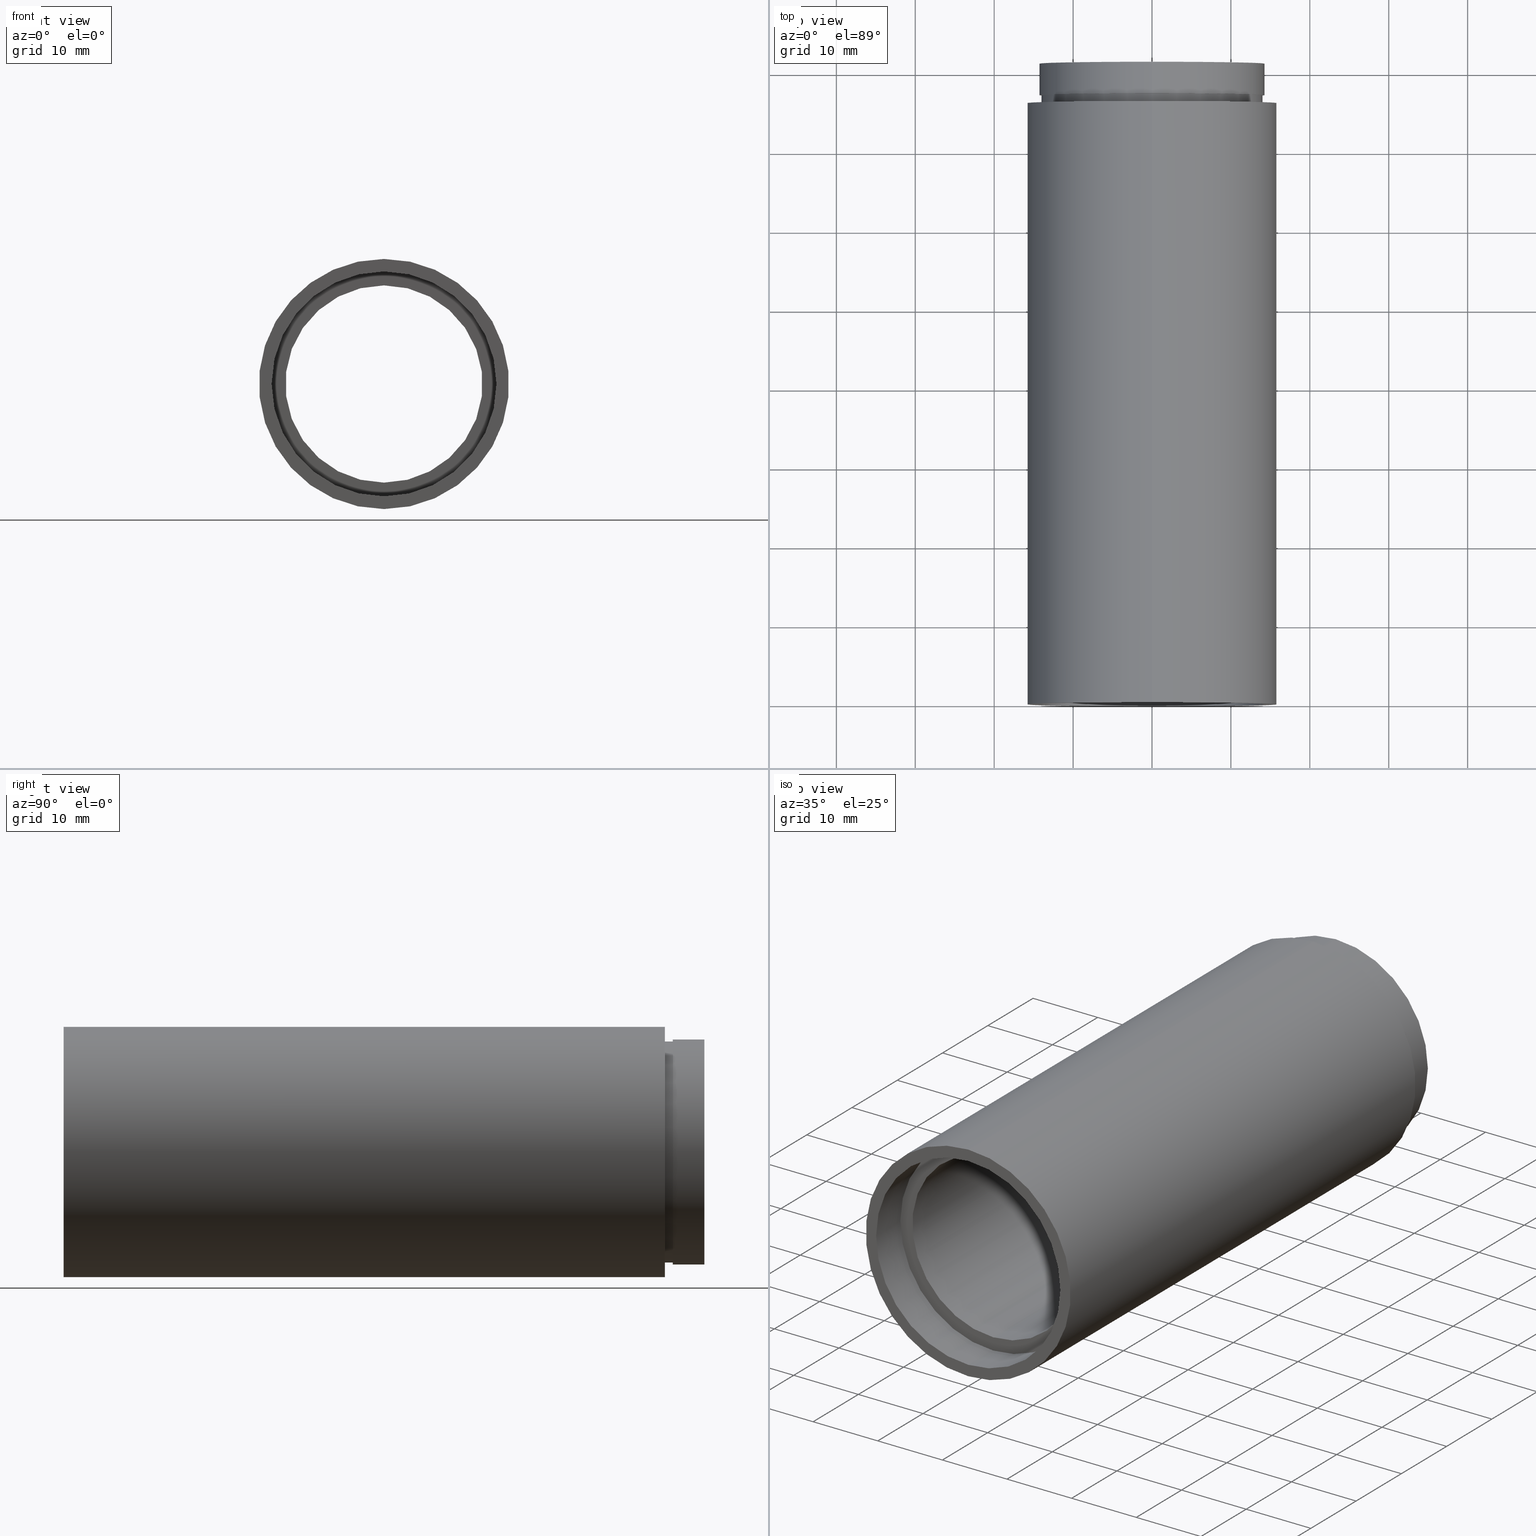
[diagram: canonical four-view strip — front | top / right | iso, engineering-drawing reading convention]
A machine part, canonical four-view strip (front | top / right | iso — engineering-drawing reading convention). The complete STEP part file that produces these views, byte-faithful:
ISO-10303-21;
HEADER;
FILE_DESCRIPTION (( 'STEP AP214' ),
    '1' );
FILE_NAME ('503044.STEP',
    '2019-09-06T05:43:21',
    ( '' ),
    ( '' ),
    'SwSTEP 2.0',
    'SolidWorks 2016',
    '' );
FILE_SCHEMA (( 'AUTOMOTIVE_DESIGN' ));
ENDSEC;

DATA;
#1 = CARTESIAN_POINT ( 'NONE',  ( 0.0000000000000000000, 81.19999999999998900, 0.0000000000000000000 ) ) ;
#2 = EDGE_CURVE ( 'NONE', #212, #215, #15, .T. ) ;
#3 = FACE_OUTER_BOUND ( 'NONE', #473, .T. ) ;
#4 = FACE_OUTER_BOUND ( 'NONE', #181, .T. ) ;
#5 = SURFACE_SIDE_STYLE ('',( #33 ) ) ;
#6 = EDGE_LOOP ( 'NONE', ( #89, #158, #195, #243 ) ) ;
#7 = CIRCLE ( 'NONE', #222, 14.35000000000001900 ) ;
#8 = ORIENTED_EDGE ( 'NONE', *, *, #459, .F. ) ;
#9 = EDGE_CURVE ( 'NONE', #372, #18, #146, .T. ) ;
#10 = DIRECTION ( 'NONE',  ( -0.0000000000000000000, 1.000000000000000000, -0.0000000000000000000 ) ) ;
#11 = AXIS2_PLACEMENT_3D ( 'NONE', #252, #448, #21 ) ;
#12 = UNCERTAINTY_MEASURE_WITH_UNIT (LENGTH_MEASURE( 1.000000000000000100E-005 ), #178, 'distance_accuracy_value', 'NONE');
#13 = ADVANCED_FACE ( 'NONE', ( #344 ), #294, .T. ) ;
#14 = VECTOR ( 'NONE', #189, 1000.000000000000000 ) ;
#15 = CIRCLE ( 'NONE', #475, 12.50000000000002000 ) ;
#16 = SURFACE_STYLE_USAGE ( .BOTH. , #255 ) ;
#17 =( GEOMETRIC_REPRESENTATION_CONTEXT ( 3 ) GLOBAL_UNCERTAINTY_ASSIGNED_CONTEXT ( ( #58 ) ) GLOBAL_UNIT_ASSIGNED_CONTEXT ( ( #143, #284, #101 ) ) REPRESENTATION_CONTEXT ( 'NONE', 'WORKASPACE' ) );
#18 = VERTEX_POINT ( 'NONE', #179 ) ;
#19 = CARTESIAN_POINT ( 'NONE',  ( 0.0000000000000000000, 4.500000000000032000, 0.0000000000000000000 ) ) ;
#20 = LINE ( 'NONE', #544, #371 ) ;
#21 = DIRECTION ( 'NONE',  ( 0.0000000000000000000, 0.0000000000000000000, 1.000000000000000000 ) ) ;
#22 = DIRECTION ( 'NONE',  ( 0.0000000000000000000, 0.0000000000000000000, 1.000000000000000000 ) ) ;
#23 = VECTOR ( 'NONE', #49, 1000.000000000000000 ) ;
#24 = PRESENTATION_STYLE_ASSIGNMENT (( #91 ) ) ;
#25 = DIRECTION ( 'NONE',  ( -0.0000000000000000000, 1.000000000000000000, -0.0000000000000000000 ) ) ;
#26 = CARTESIAN_POINT ( 'NONE',  ( 14.00000000000000900, 76.19999999999998900, 0.0000000000000000000 ) ) ;
#27 = PRESENTATION_LAYER_ASSIGNMENT (  '', '', ( #620 ) ) ;
#28 = ORIENTED_EDGE ( 'NONE', *, *, #422, .F. ) ;
#29 = DIRECTION ( 'NONE',  ( 0.0000000000000000000, 0.0000000000000000000, 1.000000000000000000 ) ) ;
#30 =( GEOMETRIC_REPRESENTATION_CONTEXT ( 3 ) GLOBAL_UNCERTAINTY_ASSIGNED_CONTEXT ( ( #571 ) ) GLOBAL_UNIT_ASSIGNED_CONTEXT ( ( #130, #450, #360 ) ) REPRESENTATION_CONTEXT ( 'NONE', 'WORKASPACE' ) );
#31 = DIRECTION ( 'NONE',  ( -0.0000000000000000000, 1.000000000000000000, -0.0000000000000000000 ) ) ;
#32 = ADVANCED_FACE ( 'NONE', ( #283 ), #452, .T. ) ;
#33 = SURFACE_STYLE_FILL_AREA ( #147 ) ;
#34 = ORIENTED_EDGE ( 'NONE', *, *, #379, .T. ) ;
#35 = FILL_AREA_STYLE_COLOUR ( '', #282 ) ;
#36 = ORIENTED_EDGE ( 'NONE', *, *, #588, .F. ) ;
#37 = EDGE_LOOP ( 'NONE', ( #538, #51 ) ) ;
#38 = CARTESIAN_POINT ( 'NONE',  ( 0.0000000000000000000, 81.19999999999998900, 12.50000000000002000 ) ) ;
#39 = SURFACE_SIDE_STYLE ('',( #565 ) ) ;
#40 = DIRECTION ( 'NONE',  ( 0.0000000000000000000, 0.0000000000000000000, 1.000000000000000000 ) ) ;
#41 = DIRECTION ( 'NONE',  ( 0.0000000000000000000, 0.0000000000000000000, 1.000000000000000000 ) ) ;
#42 = AXIS2_PLACEMENT_3D ( 'NONE', #85, #183, #272 ) ;
#43 = DIRECTION ( 'NONE',  ( -0.0000000000000000000, 1.000000000000000000, -0.0000000000000000000 ) ) ;
#44 =( NAMED_UNIT ( * ) SI_UNIT ( $, .STERADIAN. ) SOLID_ANGLE_UNIT ( ) );
#45 = SURFACE_SIDE_STYLE ('',( #106 ) ) ;
#46 = DIRECTION ( 'NONE',  ( -0.0000000000000000000, 1.000000000000000000, -0.0000000000000000000 ) ) ;
#47 = ORIENTED_EDGE ( 'NONE', *, *, #386, .T. ) ;
#48 = AXIS2_PLACEMENT_3D ( 'NONE', #132, #87, #40 ) ;
#49 = DIRECTION ( 'NONE',  ( -0.0000000000000000000, 1.000000000000000000, -0.0000000000000000000 ) ) ;
#50 = ORIENTED_EDGE ( 'NONE', *, *, #572, .F. ) ;
#51 = ORIENTED_EDGE ( 'NONE', *, *, #361, .T. ) ;
#52 = MECHANICAL_DESIGN_GEOMETRIC_PRESENTATION_REPRESENTATION (  '', ( #247 ), #17 ) ;
#53 = CYLINDRICAL_SURFACE ( 'NONE', #275, 12.50000000000002000 ) ;
#54 = AXIS2_PLACEMENT_3D ( 'NONE', #555, #43, #618 ) ;
#55 = EDGE_LOOP ( 'NONE', ( #28, #229 ) ) ;
#56 = AXIS2_PLACEMENT_3D ( 'NONE', #180, #417, #227 ) ;
#57 = DIRECTION ( 'NONE',  ( 0.0000000000000000000, 0.0000000000000000000, 1.000000000000000000 ) ) ;
#58 = UNCERTAINTY_MEASURE_WITH_UNIT (LENGTH_MEASURE( 1.000000000000000100E-005 ), #143, 'distance_accuracy_value', 'NONE');
#59 = ORIENTED_EDGE ( 'NONE', *, *, #9, .F. ) ;
#60 = AXIS2_PLACEMENT_3D ( 'NONE', #121, #216, #259 ) ;
#61 = PRODUCT_DEFINITION ( 'δ֪', '', #624, #385 ) ;
#62 = PRESENTATION_STYLE_ASSIGNMENT (( #16 ) ) ;
#63 = VERTEX_POINT ( 'NONE', #514 ) ;
#64 = ADVANCED_FACE ( 'NONE', ( #4 ), #339, .T. ) ;
#65 = FACE_BOUND ( 'NONE', #86, .T. ) ;
#66 = DIRECTION ( 'NONE',  ( -0.0000000000000000000, 1.000000000000000000, -0.0000000000000000000 ) ) ;
#67 = EDGE_LOOP ( 'NONE', ( #328, #537, #59, #225 ) ) ;
#68 = CARTESIAN_POINT ( 'NONE',  ( 0.0000000000000000000, 2.775557561562891400E-014, 14.25000000000000000 ) ) ;
#69 = CARTESIAN_POINT ( 'NONE',  ( 1.745121688784978200E-015, 4.500000000000032000, -14.25000000000000000 ) ) ;
#70 = DIRECTION ( 'NONE',  ( -0.0000000000000000000, 1.000000000000000000, -0.0000000000000000000 ) ) ;
#71 = CARTESIAN_POINT ( 'NONE',  ( 0.0000000000000000000, 161.3761669434274500, 0.0000000000000000000 ) ) ;
#72 = ORIENTED_EDGE ( 'NONE', *, *, #550, .F. ) ;
#73 = CARTESIAN_POINT ( 'NONE',  ( 0.0000000000000000000, 77.19999999999998900, 14.00000000000000900 ) ) ;
#74 = PRESENTATION_STYLE_ASSIGNMENT (( #98 ) ) ;
#75 = ORIENTED_EDGE ( 'NONE', *, *, #388, .F. ) ;
#76 = ADVANCED_FACE ( 'NONE', ( #317 ), #592, .T. ) ;
#77 = AXIS2_PLACEMENT_3D ( 'NONE', #19, #201, #594 ) ;
#78 = ORIENTED_EDGE ( 'NONE', *, *, #531, .T. ) ;
#79 = DIRECTION ( 'NONE',  ( -0.0000000000000000000, 1.000000000000000000, -0.0000000000000000000 ) ) ;
#80 = FACE_OUTER_BOUND ( 'NONE', #583, .T. ) ;
#81 = AXIS2_PLACEMENT_3D ( 'NONE', #115, #262, #397 ) ;
#82 = DIRECTION ( 'NONE',  ( -0.0000000000000000000, 1.000000000000000000, -0.0000000000000000000 ) ) ;
#83 = DIRECTION ( 'NONE',  ( 0.0000000000000000000, 0.0000000000000000000, 1.000000000000000000 ) ) ;
#84 = CYLINDRICAL_SURFACE ( 'NONE', #48, 14.25000000000000900 ) ;
#85 = CARTESIAN_POINT ( 'NONE',  ( 12.50000000000002000, 81.19999999999998900, 0.0000000000000000000 ) ) ;
#86 = EDGE_LOOP ( 'NONE', ( #476, #597 ) ) ;
#87 = DIRECTION ( 'NONE',  ( -0.0000000000000000000, 1.000000000000000000, -0.0000000000000000000 ) ) ;
#88 = CIRCLE ( 'NONE', #54, 15.85000000000002100 ) ;
#89 = ORIENTED_EDGE ( 'NONE', *, *, #427, .F. ) ;
#90 = DIRECTION ( 'NONE',  ( -0.0000000000000000000, 1.000000000000000000, -0.0000000000000000000 ) ) ;
#91 = SURFACE_STYLE_USAGE ( .BOTH. , #561 ) ;
#92 = MECHANICAL_DESIGN_GEOMETRIC_PRESENTATION_REPRESENTATION (  '', ( #620 ), #404 ) ;
#93 = DIRECTION ( 'NONE',  ( -0.0000000000000000000, 1.000000000000000000, -0.0000000000000000000 ) ) ;
#94 = EDGE_LOOP ( 'NONE', ( #357, #333, #109, #412 ) ) ;
#95 = DIRECTION ( 'NONE',  ( -0.0000000000000000000, 1.000000000000000000, -0.0000000000000000000 ) ) ;
#96 = DIRECTION ( 'NONE',  ( 0.0000000000000000000, -0.0000000000000000000, -1.000000000000000000 ) ) ;
#97 = ORIENTED_EDGE ( 'NONE', *, *, #263, .T. ) ;
#98 = SURFACE_STYLE_USAGE ( .BOTH. , #378 ) ;
#99 = AXIS2_PLACEMENT_3D ( 'NONE', #114, #442, #489 ) ;
#100 =( GEOMETRIC_REPRESENTATION_CONTEXT ( 3 ) GLOBAL_UNCERTAINTY_ASSIGNED_CONTEXT ( ( #525 ) ) GLOBAL_UNIT_ASSIGNED_CONTEXT ( ( #513, #134, #413 ) ) REPRESENTATION_CONTEXT ( 'NONE', 'WORKASPACE' ) );
#101 =( NAMED_UNIT ( * ) SI_UNIT ( $, .STERADIAN. ) SOLID_ANGLE_UNIT ( ) );
#102 = LINE ( 'NONE', #313, #257 ) ;
#103 = FACE_BOUND ( 'NONE', #233, .T. ) ;
#104 = SURFACE_STYLE_FILL_AREA ( #619 ) ;
#105 = ORIENTED_EDGE ( 'NONE', *, *, #469, .F. ) ;
#106 = SURFACE_STYLE_FILL_AREA ( #188 ) ;
#107 = ORIENTED_EDGE ( 'NONE', *, *, #268, .T. ) ;
#108 = PRESENTATION_LAYER_ASSIGNMENT (  '', '', ( #308 ) ) ;
#109 = ORIENTED_EDGE ( 'NONE', *, *, #379, .F. ) ;
#110 = AXIS2_PLACEMENT_3D ( 'NONE', #493, #25, #395 ) ;
#111 = FACE_OUTER_BOUND ( 'NONE', #119, .T. ) ;
#112 = AXIS2_PLACEMENT_3D ( 'NONE', #410, #128, #365 ) ;
#113 = APPLICATION_PROTOCOL_DEFINITION ( 'draft international standard', 'automotive_design', 1998, #199 ) ;
#114 = CARTESIAN_POINT ( 'NONE',  ( 0.0000000000000000000, 2.775557561562891400E-014, 0.0000000000000000000 ) ) ;
#115 = CARTESIAN_POINT ( 'NONE',  ( 14.00000000000000900, 77.19999999999998900, 0.0000000000000000000 ) ) ;
#116 = ORIENTED_EDGE ( 'NONE', *, *, #185, .F. ) ;
#117 = COLOUR_RGB ( '',1.000000000000000000, 1.000000000000000000, 1.000000000000000000 ) ;
#118 = CARTESIAN_POINT ( 'NONE',  ( 1.530808498934193900E-015, 81.19999999999998900, -12.50000000000002000 ) ) ;
#119 = EDGE_LOOP ( 'NONE', ( #613, #615, #187, #411 ) ) ;
#120 = CIRCLE ( 'NONE', #623, 14.00000000000000900 ) ;
#121 = CARTESIAN_POINT ( 'NONE',  ( 0.0000000000000000000, 76.19999999999998900, 0.0000000000000000000 ) ) ;
#122 = AXIS2_PLACEMENT_3D ( 'NONE', #230, #320, #271 ) ;
#123 = DIRECTION ( 'NONE',  ( -0.0000000000000000000, 1.000000000000000000, -0.0000000000000000000 ) ) ;
#124 = VERTEX_POINT ( 'NONE', #38 ) ;
#125 = STYLED_ITEM ( 'NONE', ( #567 ), #265 ) ;
#126 = UNCERTAINTY_MEASURE_WITH_UNIT (LENGTH_MEASURE( 1.000000000000000100E-005 ), #616, 'distance_accuracy_value', 'NONE');
#127 = AXIS2_PLACEMENT_3D ( 'NONE', #269, #421, #373 ) ;
#128 = DIRECTION ( 'NONE',  ( -0.0000000000000000000, 1.000000000000000000, -0.0000000000000000000 ) ) ;
#129 = ORIENTED_EDGE ( 'NONE', *, *, #261, .T. ) ;
#130 =( LENGTH_UNIT ( ) NAMED_UNIT ( * ) SI_UNIT ( .MILLI., .METRE. ) );
#131 = CARTESIAN_POINT ( 'NONE',  ( 0.0000000000000000000, 76.19999999999998900, 0.0000000000000000000 ) ) ;
#132 = CARTESIAN_POINT ( 'NONE',  ( 0.0000000000000000000, 161.3761669434274500, 0.0000000000000000000 ) ) ;
#133 = ORIENTED_EDGE ( 'NONE', *, *, #422, .T. ) ;
#134 =( NAMED_UNIT ( * ) PLANE_ANGLE_UNIT ( ) SI_UNIT ( $, .RADIAN. ) );
#135 = FILL_AREA_STYLE ('',( #557 ) ) ;
#136 = CIRCLE ( 'NONE', #609, 15.85000000000002100 ) ;
#137 = FACE_OUTER_BOUND ( 'NONE', #67, .T. ) ;
#138 = SURFACE_SIDE_STYLE ('',( #535 ) ) ;
#139 =( NAMED_UNIT ( * ) SI_UNIT ( $, .STERADIAN. ) SOLID_ANGLE_UNIT ( ) );
#140 = AXIS2_PLACEMENT_3D ( 'NONE', #251, #157, #306 ) ;
#141 = CARTESIAN_POINT ( 'NONE',  ( 0.0000000000000000000, 161.3761669434274500, 14.25000000000000900 ) ) ;
#142 =( LENGTH_UNIT ( ) NAMED_UNIT ( * ) SI_UNIT ( .MILLI., .METRE. ) );
#143 =( LENGTH_UNIT ( ) NAMED_UNIT ( * ) SI_UNIT ( .MILLI., .METRE. ) );
#144 = EDGE_CURVE ( 'NONE', #124, #392, #495, .T. ) ;
#145 = CIRCLE ( 'NONE', #453, 14.35000000000001900 ) ;
#146 = CIRCLE ( 'NONE', #213, 14.25000000000001100 ) ;
#147 = FILL_AREA_STYLE ('',( #287 ) ) ;
#148 = AXIS2_PLACEMENT_3D ( 'NONE', #446, #311, #29 ) ;
#149 = EDGE_LOOP ( 'NONE', ( #105, #470 ) ) ;
#150 = LINE ( 'NONE', #309, #591 ) ;
#151 = EDGE_CURVE ( 'NONE', #456, #548, #193, .T. ) ;
#152 = PRODUCT_CONTEXT ( 'NONE', #199, 'mechanical' ) ;
#153 = MECHANICAL_DESIGN_GEOMETRIC_PRESENTATION_REPRESENTATION (  '', ( #314 ), #30 ) ;
#154 = PRESENTATION_STYLE_ASSIGNMENT (( #375 ) ) ;
#155 = AXIS2_PLACEMENT_3D ( 'NONE', #131, #415, #467 ) ;
#156 = ADVANCED_FACE ( 'NONE', ( #137 ), #84, .T. ) ;
#157 = DIRECTION ( 'NONE',  ( 0.0000000000000000000, 0.0000000000000000000, 1.000000000000000000 ) ) ;
#158 = ORIENTED_EDGE ( 'NONE', *, *, #169, .F. ) ;
#159 = ORIENTED_EDGE ( 'NONE', *, *, #485, .F. ) ;
#160 = PRODUCT_RELATED_PRODUCT_CATEGORY ( 'part', '', ( #457 ) ) ;
#161 = FACE_OUTER_BOUND ( 'NONE', #406, .T. ) ;
#162 = CARTESIAN_POINT ( 'NONE',  ( 1.714505518806295400E-015, 76.19999999999998900, -14.00000000000000900 ) ) ;
#163 = COLOUR_RGB ( '',1.000000000000000000, 1.000000000000000000, 1.000000000000000000 ) ;
#164 = APPLICATION_CONTEXT ( 'automotive_design' ) ;
#165 = CARTESIAN_POINT ( 'NONE',  ( 1.530808498934193900E-015, 5.499999999999976900, -12.50000000000002000 ) ) ;
#166 = DIRECTION ( 'NONE',  ( 0.0000000000000000000, -0.0000000000000000000, -1.000000000000000000 ) ) ;
#167 = SHAPE_DEFINITION_REPRESENTATION ( #543, #348 ) ;
#168 = LINE ( 'NONE', #304, #600 ) ;
#169 = EDGE_CURVE ( 'NONE', #215, #212, #530, .T. ) ;
#170 = COLOUR_RGB ( '',1.000000000000000000, 1.000000000000000000, 1.000000000000000000 ) ;
#171 = CARTESIAN_POINT ( 'NONE',  ( 0.0000000000000000000, 77.19999999999998900, 0.0000000000000000000 ) ) ;
#172 = ADVANCED_FACE ( 'NONE', ( #540 ), #273, .F. ) ;
#173 = VERTEX_POINT ( 'NONE', #358 ) ;
#174 = ORIENTED_EDGE ( 'NONE', *, *, #496, .F. ) ;
#175 = DIRECTION ( 'NONE',  ( 0.0000000000000000000, 0.0000000000000000000, 1.000000000000000000 ) ) ;
#176 = PRESENTATION_LAYER_ASSIGNMENT (  '', '', ( #314 ) ) ;
#177 = DIRECTION ( 'NONE',  ( -0.0000000000000000000, 1.000000000000000000, -0.0000000000000000000 ) ) ;
#178 =( LENGTH_UNIT ( ) NAMED_UNIT ( * ) SI_UNIT ( .MILLI., .METRE. ) );
#179 = CARTESIAN_POINT ( 'NONE',  ( 1.745121688784979800E-015, 81.19999999999998900, -14.25000000000001200 ) ) ;
#180 = CARTESIAN_POINT ( 'NONE',  ( 0.0000000000000000000, 81.19999999999998900, 0.0000000000000000000 ) ) ;
#181 = EDGE_LOOP ( 'NONE', ( #72, #482, #241, #50 ) ) ;
#182 =( NAMED_UNIT ( * ) PLANE_ANGLE_UNIT ( ) SI_UNIT ( $, .RADIAN. ) );
#183 = DIRECTION ( 'NONE',  ( 0.0000000000000000000, -1.000000000000000000, 0.0000000000000000000 ) ) ;
#184 = FACE_OUTER_BOUND ( 'NONE', #499, .T. ) ;
#185 = EDGE_CURVE ( 'NONE', #548, #456, #266, .T. ) ;
#186 = FILL_AREA_STYLE ('',( #478 ) ) ;
#187 = ORIENTED_EDGE ( 'NONE', *, *, #524, .T. ) ;
#188 = FILL_AREA_STYLE ('',( #330 ) ) ;
#189 = DIRECTION ( 'NONE',  ( -0.0000000000000000000, 1.000000000000000000, -0.0000000000000000000 ) ) ;
#190 = PRESENTATION_LAYER_ASSIGNMENT (  '', '', ( #497 ) ) ;
#191 = DIRECTION ( 'NONE',  ( 0.0000000000000000000, 0.0000000000000000000, 1.000000000000000000 ) ) ;
#192 = ORIENTED_EDGE ( 'NONE', *, *, #534, .T. ) ;
#193 = CIRCLE ( 'NONE', #336, 14.25000000000000000 ) ;
#194 = ORIENTED_EDGE ( 'NONE', *, *, #588, .T. ) ;
#195 = ORIENTED_EDGE ( 'NONE', *, *, #398, .T. ) ;
#196 = EDGE_CURVE ( 'NONE', #449, #63, #529, .T. ) ;
#197 = MECHANICAL_DESIGN_GEOMETRIC_PRESENTATION_REPRESENTATION (  '', ( #245 ), #605 ) ;
#198 = ORIENTED_EDGE ( 'NONE', *, *, #332, .F. ) ;
#199 = APPLICATION_CONTEXT ( 'automotive_design' ) ;
#200 = FACE_BOUND ( 'NONE', #526, .T. ) ;
#201 = DIRECTION ( 'NONE',  ( -0.0000000000000000000, 1.000000000000000000, -0.0000000000000000000 ) ) ;
#202 = CIRCLE ( 'NONE', #536, 14.25000000000000700 ) ;
#203 = CARTESIAN_POINT ( 'NONE',  ( 0.0000000000000000000, -2.775557561562891400E-014, 0.0000000000000000000 ) ) ;
#204 = ORIENTED_EDGE ( 'NONE', *, *, #524, .F. ) ;
#205 = CARTESIAN_POINT ( 'NONE',  ( 0.0000000000000000000, 5.499999999999976900, 12.50000000000002000 ) ) ;
#206 = AXIS2_PLACEMENT_3D ( 'NONE', #562, #177, #226 ) ;
#207 = CARTESIAN_POINT ( 'NONE',  ( 0.0000000000000000000, 161.3761669434274500, 14.00000000000000900 ) ) ;
#208 = COLOUR_RGB ( '',1.000000000000000000, 1.000000000000000000, 1.000000000000000000 ) ;
#209 = VERTEX_POINT ( 'NONE', #68 ) ;
#210 = CARTESIAN_POINT ( 'NONE',  ( 14.25000000000000000, 8.726008142763375300E-015, 0.0000000000000000000 ) ) ;
#211 = DIRECTION ( 'NONE',  ( 0.0000000000000000000, 0.0000000000000000000, 1.000000000000000000 ) ) ;
#212 = VERTEX_POINT ( 'NONE', #165 ) ;
#213 = AXIS2_PLACEMENT_3D ( 'NONE', #506, #219, #368 ) ;
#214 = PLANE ( 'NONE',  #81 ) ;
#215 = VERTEX_POINT ( 'NONE', #205 ) ;
#216 = DIRECTION ( 'NONE',  ( -0.0000000000000000000, 1.000000000000000000, -0.0000000000000000000 ) ) ;
#217 = ADVANCED_FACE ( 'NONE', ( #547, #103 ), #542, .F. ) ;
#218 = CARTESIAN_POINT ( 'NONE',  ( 0.0000000000000000000, 161.3761669434274500, 0.0000000000000000000 ) ) ;
#219 = DIRECTION ( 'NONE',  ( -0.0000000000000000000, 1.000000000000000000, -0.0000000000000000000 ) ) ;
#220 = DIRECTION ( 'NONE',  ( 0.0000000000000000000, 0.0000000000000000000, 1.000000000000000000 ) ) ;
#221 = SURFACE_STYLE_FILL_AREA ( #186 ) ;
#222 = AXIS2_PLACEMENT_3D ( 'NONE', #223, #90, #560 ) ;
#223 = CARTESIAN_POINT ( 'NONE',  ( 0.0000000000000000000, 4.499999999999976000, 0.0000000000000000000 ) ) ;
#224 =( NAMED_UNIT ( * ) PLANE_ANGLE_UNIT ( ) SI_UNIT ( $, .RADIAN. ) );
#225 = ORIENTED_EDGE ( 'NONE', *, *, #293, .F. ) ;
#226 = DIRECTION ( 'NONE',  ( 0.0000000000000000000, 0.0000000000000000000, 1.000000000000000000 ) ) ;
#227 = DIRECTION ( 'NONE',  ( 0.0000000000000000000, 0.0000000000000000000, 1.000000000000000000 ) ) ;
#228 = PRESENTATION_STYLE_ASSIGNMENT (( #277 ) ) ;
#229 = ORIENTED_EDGE ( 'NONE', *, *, #263, .F. ) ;
#230 = CARTESIAN_POINT ( 'NONE',  ( 0.0000000000000000000, 161.3761669434274500, 0.0000000000000000000 ) ) ;
#231 = DIRECTION ( 'NONE',  ( -0.0000000000000000000, 1.000000000000000000, -0.0000000000000000000 ) ) ;
#232 = DIRECTION ( 'NONE',  ( -0.0000000000000000000, 1.000000000000000000, -0.0000000000000000000 ) ) ;
#233 = EDGE_LOOP ( 'NONE', ( #377, #192 ) ) ;
#234 = EDGE_CURVE ( 'NONE', #209, #447, #610, .T. ) ;
#235 = UNCERTAINTY_MEASURE_WITH_UNIT (LENGTH_MEASURE( 1.000000000000000100E-005 ), #492, 'distance_accuracy_value', 'NONE');
#236 = CARTESIAN_POINT ( 'NONE',  ( 0.0000000000000000000, 76.19999999999998900, 0.0000000000000000000 ) ) ;
#237 = CARTESIAN_POINT ( 'NONE',  ( 0.0000000000000000000, 5.499999999999976900, 0.0000000000000000000 ) ) ;
#238 = AXIS2_PLACEMENT_3D ( 'NONE', #590, #10, #57 ) ;
#239 = CARTESIAN_POINT ( 'NONE',  ( 1.941065176648557100E-015, -2.775557561562891400E-014, -15.85000000000002100 ) ) ;
#240 = CIRCLE ( 'NONE', #112, 14.25000000000000700 ) ;
#241 = ORIENTED_EDGE ( 'NONE', *, *, #293, .T. ) ;
#242 = CIRCLE ( 'NONE', #148, 14.35000000000001900 ) ;
#243 = ORIENTED_EDGE ( 'NONE', *, *, #144, .T. ) ;
#244 = AXIS2_PLACEMENT_3D ( 'NONE', #26, #359, #166 ) ;
#245 = STYLED_ITEM ( 'NONE', ( #154 ), #64 ) ;
#246 = ORIENTED_EDGE ( 'NONE', *, *, #361, .F. ) ;
#247 = STYLED_ITEM ( 'NONE', ( #74 ), #295 ) ;
#248 = COLOUR_RGB ( '',1.000000000000000000, 1.000000000000000000, 1.000000000000000000 ) ;
#249 = VERTEX_POINT ( 'NONE', #162 ) ;
#250 = ADVANCED_FACE ( 'NONE', ( #431, #65 ), #256, .F. ) ;
#251 = CARTESIAN_POINT ( 'NONE',  ( 0.0000000000000000000, 0.0000000000000000000, 0.0000000000000000000 ) ) ;
#252 = CARTESIAN_POINT ( 'NONE',  ( 0.0000000000000000000, 77.19999999999998900, 0.0000000000000000000 ) ) ;
#253 = MECHANICAL_DESIGN_GEOMETRIC_PRESENTATION_REPRESENTATION (  '', ( #400 ), #100 ) ;
#254 = ORIENTED_EDGE ( 'NONE', *, *, #296, .F. ) ;
#255 = SURFACE_SIDE_STYLE ('',( #347 ) ) ;
#256 = PLANE ( 'NONE',  #438 ) ;
#257 = VECTOR ( 'NONE', #31, 1000.000000000000000 ) ;
#258 = LINE ( 'NONE', #207, #425 ) ;
#259 = DIRECTION ( 'NONE',  ( 0.0000000000000000000, 0.0000000000000000000, 1.000000000000000000 ) ) ;
#260 = DIRECTION ( 'NONE',  ( -0.0000000000000000000, 1.000000000000000000, -0.0000000000000000000 ) ) ;
#261 = EDGE_CURVE ( 'NONE', #249, #63, #558, .T. ) ;
#262 = DIRECTION ( 'NONE',  ( -0.0000000000000000000, 1.000000000000000000, 0.0000000000000000000 ) ) ;
#263 = EDGE_CURVE ( 'NONE', #323, #480, #145, .T. ) ;
#264 = CARTESIAN_POINT ( 'NONE',  ( 0.0000000000000000000, 77.19999999999998900, 0.0000000000000000000 ) ) ;
#265 = ADVANCED_FACE ( 'NONE', ( #111 ), #338, .F. ) ;
#266 = CIRCLE ( 'NONE', #77, 14.25000000000000000 ) ;
#267 = ORIENTED_EDGE ( 'NONE', *, *, #432, .T. ) ;
#268 = EDGE_CURVE ( 'NONE', #173, #305, #579, .T. ) ;
#269 = CARTESIAN_POINT ( 'NONE',  ( 0.0000000000000000000, 81.19999999999998900, 0.0000000000000000000 ) ) ;
#270 = ORIENTED_EDGE ( 'NONE', *, *, #310, .T. ) ;
#271 = DIRECTION ( 'NONE',  ( 0.0000000000000000000, 0.0000000000000000000, 1.000000000000000000 ) ) ;
#272 = DIRECTION ( 'NONE',  ( 0.0000000000000000000, -0.0000000000000000000, -1.000000000000000000 ) ) ;
#273 = CYLINDRICAL_SURFACE ( 'NONE', #110, 14.35000000000001900 ) ;
#274 =( NAMED_UNIT ( * ) PLANE_ANGLE_UNIT ( ) SI_UNIT ( $, .RADIAN. ) );
#275 = AXIS2_PLACEMENT_3D ( 'NONE', #376, #93, #518 ) ;
#276 = UNCERTAINTY_MEASURE_WITH_UNIT (LENGTH_MEASURE( 1.000000000000000100E-005 ), #352, 'distance_accuracy_value', 'NONE');
#277 = SURFACE_STYLE_USAGE ( .BOTH. , #39 ) ;
#278 = PRESENTATION_LAYER_ASSIGNMENT (  '', '', ( #245 ) ) ;
#279 = CIRCLE ( 'NONE', #291, 15.85000000000002100 ) ;
#280 = DIRECTION ( 'NONE',  ( 0.0000000000000000000, -1.000000000000000000, 0.0000000000000000000 ) ) ;
#281 =( LENGTH_UNIT ( ) NAMED_UNIT ( * ) SI_UNIT ( .MILLI., .METRE. ) );
#282 = COLOUR_RGB ( '',1.000000000000000000, 1.000000000000000000, 1.000000000000000000 ) ;
#283 = FACE_OUTER_BOUND ( 'NONE', #437, .T. ) ;
#284 =( NAMED_UNIT ( * ) PLANE_ANGLE_UNIT ( ) SI_UNIT ( $, .RADIAN. ) );
#285 = AXIS2_PLACEMENT_3D ( 'NONE', #218, #508, #355 ) ;
#286 = AXIS2_PLACEMENT_3D ( 'NONE', #521, #232, #494 ) ;
#287 = FILL_AREA_STYLE_COLOUR ( '', #248 ) ;
#288 = ORIENTED_EDGE ( 'NONE', *, *, #144, .F. ) ;
#289 = ORIENTED_EDGE ( 'NONE', *, *, #310, .F. ) ;
#290 = PRESENTATION_STYLE_ASSIGNMENT (( #380 ) ) ;
#291 = AXIS2_PLACEMENT_3D ( 'NONE', #236, #477, #573 ) ;
#292 = CYLINDRICAL_SURFACE ( 'NONE', #285, 14.25000000000000000 ) ;
#293 = EDGE_CURVE ( 'NONE', #569, #372, #351, .T. ) ;
#294 = CYLINDRICAL_SURFACE ( 'NONE', #501, 15.85000000000002100 ) ;
#295 = MANIFOLD_SOLID_BREP ( '��ת1', #602 ) ;
#296 = EDGE_CURVE ( 'NONE', #300, #488, #405, .T. ) ;
#297 = COLOUR_RGB ( '',1.000000000000000000, 1.000000000000000000, 1.000000000000000000 ) ;
#298 = ADVANCED_FACE ( 'NONE', ( #3 ), #423, .F. ) ;
#299 = ORIENTED_EDGE ( 'NONE', *, *, #531, .F. ) ;
#300 = VERTEX_POINT ( 'NONE', #239 ) ;
#301 = FACE_OUTER_BOUND ( 'NONE', #435, .T. ) ;
#302 = CARTESIAN_POINT ( 'NONE',  ( 12.50000000000002000, 5.499999999999984000, 0.0000000000000000000 ) ) ;
#303 = CARTESIAN_POINT ( 'NONE',  ( 1.714505518806295400E-015, 161.3761669434274500, -14.00000000000000900 ) ) ;
#304 = CARTESIAN_POINT ( 'NONE',  ( 0.0000000000000000000, 161.3761669434274500, 12.50000000000002000 ) ) ;
#305 = VERTEX_POINT ( 'NONE', #445 ) ;
#306 = DIRECTION ( 'NONE',  ( 1.000000000000000000, 0.0000000000000000000, 0.0000000000000000000 ) ) ;
#307 = DIRECTION ( 'NONE',  ( -0.0000000000000000000, 1.000000000000000000, -0.0000000000000000000 ) ) ;
#308 = STYLED_ITEM ( 'NONE', ( #62 ), #348 ) ;
#309 = CARTESIAN_POINT ( 'NONE',  ( 1.530808498934193900E-015, 161.3761669434274500, -12.50000000000002000 ) ) ;
#310 = EDGE_CURVE ( 'NONE', #447, #456, #451, .T. ) ;
#311 = DIRECTION ( 'NONE',  ( -0.0000000000000000000, 1.000000000000000000, -0.0000000000000000000 ) ) ;
#312 = ORIENTED_EDGE ( 'NONE', *, *, #485, .T. ) ;
#313 = CARTESIAN_POINT ( 'NONE',  ( 1.757368156776454300E-015, 161.3761669434274500, -14.35000000000001900 ) ) ;
#314 = STYLED_ITEM ( 'NONE', ( #515 ), #350 ) ;
#315 = ORIENTED_EDGE ( 'NONE', *, *, #386, .F. ) ;
#316 = CARTESIAN_POINT ( 'NONE',  ( 1.745121688784979000E-015, 77.19999999999998900, -14.25000000000000700 ) ) ;
#317 = FACE_OUTER_BOUND ( 'NONE', #553, .T. ) ;
#318 = MECHANICAL_DESIGN_GEOMETRIC_PRESENTATION_REPRESENTATION (  '', ( #308 ), #587 ) ;
#319 = CARTESIAN_POINT ( 'NONE',  ( 1.941065176648557100E-015, 76.19999999999998900, -15.85000000000002100 ) ) ;
#320 = DIRECTION ( 'NONE',  ( -0.0000000000000000000, 1.000000000000000000, -0.0000000000000000000 ) ) ;
#321 = CARTESIAN_POINT ( 'NONE',  ( 1.745121688784979400E-015, 161.3761669434274500, -14.25000000000000900 ) ) ;
#322 = CARTESIAN_POINT ( 'NONE',  ( 0.0000000000000000000, 161.3761669434274500, 0.0000000000000000000 ) ) ;
#323 = VERTEX_POINT ( 'NONE', #460 ) ;
#324 = LINE ( 'NONE', #463, #512 ) ;
#325 = CARTESIAN_POINT ( 'NONE',  ( 0.0000000000000000000, 161.3761669434274500, 0.0000000000000000000 ) ) ;
#326 = DIRECTION ( 'NONE',  ( -0.0000000000000000000, 1.000000000000000000, -0.0000000000000000000 ) ) ;
#327 = VECTOR ( 'NONE', #428, 1000.000000000000000 ) ;
#328 = ORIENTED_EDGE ( 'NONE', *, *, #341, .T. ) ;
#329 = AXIS2_PLACEMENT_3D ( 'NONE', #71, #260, #211 ) ;
#330 = FILL_AREA_STYLE_COLOUR ( '', #208 ) ;
#331 = DIRECTION ( 'NONE',  ( -0.0000000000000000000, 1.000000000000000000, -0.0000000000000000000 ) ) ;
#332 = EDGE_CURVE ( 'NONE', #510, #569, #202, .T. ) ;
#333 = ORIENTED_EDGE ( 'NONE', *, *, #296, .T. ) ;
#334 = DIRECTION ( 'NONE',  ( -0.0000000000000000000, 1.000000000000000000, -0.0000000000000000000 ) ) ;
#335 = CARTESIAN_POINT ( 'NONE',  ( 1.745121688784978200E-015, 161.3761669434274500, -14.25000000000000000 ) ) ;
#336 = AXIS2_PLACEMENT_3D ( 'NONE', #464, #419, #511 ) ;
#337 = FACE_BOUND ( 'NONE', #37, .T. ) ;
#338 = CYLINDRICAL_SURFACE ( 'NONE', #577, 12.50000000000002000 ) ;
#339 = CYLINDRICAL_SURFACE ( 'NONE', #345, 14.25000000000000900 ) ;
#340 = ORIENTED_EDGE ( 'NONE', *, *, #151, .T. ) ;
#341 = EDGE_CURVE ( 'NONE', #569, #510, #240, .T. ) ;
#342 = FACE_OUTER_BOUND ( 'NONE', #6, .T. ) ;
#343 = ORIENTED_EDGE ( 'NONE', *, *, #459, .T. ) ;
#344 = FACE_OUTER_BOUND ( 'NONE', #94, .T. ) ;
#345 = AXIS2_PLACEMENT_3D ( 'NONE', #325, #517, #41 ) ;
#346 = ORIENTED_EDGE ( 'NONE', *, *, #341, .F. ) ;
#347 = SURFACE_STYLE_FILL_AREA ( #444 ) ;
#348 = ADVANCED_BREP_SHAPE_REPRESENTATION ( '503044', ( #295, #140 ), #603 ) ;
#349 = AXIS2_PLACEMENT_3D ( 'NONE', #541, #66, #454 ) ;
#350 = ADVANCED_FACE ( 'NONE', ( #389 ), #292, .F. ) ;
#351 = LINE ( 'NONE', #141, #416 ) ;
#352 =( LENGTH_UNIT ( ) NAMED_UNIT ( * ) SI_UNIT ( .MILLI., .METRE. ) );
#353 = DIRECTION ( 'NONE',  ( -0.0000000000000000000, 1.000000000000000000, 0.0000000000000000000 ) ) ;
#354 = VERTEX_POINT ( 'NONE', #545 ) ;
#355 = DIRECTION ( 'NONE',  ( 0.0000000000000000000, 0.0000000000000000000, 1.000000000000000000 ) ) ;
#356 = CIRCLE ( 'NONE', #532, 14.25000000000000000 ) ;
#357 = ORIENTED_EDGE ( 'NONE', *, *, #469, .T. ) ;
#358 = CARTESIAN_POINT ( 'NONE',  ( 0.0000000000000000000, -2.775557561562891400E-014, 15.85000000000002100 ) ) ;
#359 = DIRECTION ( 'NONE',  ( 0.0000000000000000000, -1.000000000000000000, 0.0000000000000000000 ) ) ;
#360 =( NAMED_UNIT ( * ) SI_UNIT ( $, .STERADIAN. ) SOLID_ANGLE_UNIT ( ) );
#361 = EDGE_CURVE ( 'NONE', #63, #449, #120, .T. ) ;
#362 = EDGE_LOOP ( 'NONE', ( #299, #75 ) ) ;
#363 = CARTESIAN_POINT ( 'NONE',  ( 0.0000000000000000000, 76.19999999999998900, 14.00000000000000900 ) ) ;
#364 = EDGE_CURVE ( 'NONE', #300, #173, #136, .T. ) ;
#365 = DIRECTION ( 'NONE',  ( 0.0000000000000000000, 0.0000000000000000000, 1.000000000000000000 ) ) ;
#366 =( NAMED_UNIT ( * ) SI_UNIT ( $, .STERADIAN. ) SOLID_ANGLE_UNIT ( ) );
#367 = FILL_AREA_STYLE ('',( #35 ) ) ;
#368 = DIRECTION ( 'NONE',  ( 0.0000000000000000000, 0.0000000000000000000, 1.000000000000000000 ) ) ;
#369 = ORIENTED_EDGE ( 'NONE', *, *, #534, .F. ) ;
#370 = PLANE ( 'NONE',  #42 ) ;
#371 = VECTOR ( 'NONE', #596, 1000.000000000000000 ) ;
#372 = VERTEX_POINT ( 'NONE', #490 ) ;
#373 = DIRECTION ( 'NONE',  ( 0.0000000000000000000, 0.0000000000000000000, 1.000000000000000000 ) ) ;
#374 = EDGE_CURVE ( 'NONE', #429, #449, #258, .T. ) ;
#375 = SURFACE_STYLE_USAGE ( .BOTH. , #138 ) ;
#376 = CARTESIAN_POINT ( 'NONE',  ( 0.0000000000000000000, 161.3761669434274500, 0.0000000000000000000 ) ) ;
#377 = ORIENTED_EDGE ( 'NONE', *, *, #234, .T. ) ;
#378 = SURFACE_SIDE_STYLE ('',( #221 ) ) ;
#379 = EDGE_CURVE ( 'NONE', #305, #488, #384, .T. ) ;
#380 = SURFACE_STYLE_USAGE ( .BOTH. , #45 ) ;
#381 = CARTESIAN_POINT ( 'NONE',  ( 0.0000000000000000000, 161.3761669434274500, 15.85000000000002100 ) ) ;
#382 = EDGE_LOOP ( 'NONE', ( #312, #604 ) ) ;
#383 = ORIENTED_EDGE ( 'NONE', *, *, #9, .T. ) ;
#384 = CIRCLE ( 'NONE', #60, 15.85000000000002100 ) ;
#385 = PRODUCT_DEFINITION_CONTEXT ( 'detailed design', #164, 'design' ) ;
#386 = EDGE_CURVE ( 'NONE', #209, #548, #20, .T. ) ;
#387 = AXIS2_PLACEMENT_3D ( 'NONE', #1, #334, #424 ) ;
#388 = EDGE_CURVE ( 'NONE', #249, #429, #420, .T. ) ;
#389 = FACE_OUTER_BOUND ( 'NONE', #528, .T. ) ;
#390 = ORIENTED_EDGE ( 'NONE', *, *, #151, .F. ) ;
#391 = APPLICATION_PROTOCOL_DEFINITION ( 'draft international standard', 'automotive_design', 1998, #164 ) ;
#392 = VERTEX_POINT ( 'NONE', #118 ) ;
#393 =( NAMED_UNIT ( * ) SI_UNIT ( $, .STERADIAN. ) SOLID_ANGLE_UNIT ( ) );
#394 = DIRECTION ( 'NONE',  ( -0.0000000000000000000, 1.000000000000000000, 0.0000000000000000000 ) ) ;
#395 = DIRECTION ( 'NONE',  ( 0.0000000000000000000, 0.0000000000000000000, 1.000000000000000000 ) ) ;
#396 = COLOUR_RGB ( '',1.000000000000000000, 1.000000000000000000, 1.000000000000000000 ) ;
#397 = DIRECTION ( 'NONE',  ( 0.0000000000000000000, 0.0000000000000000000, 1.000000000000000000 ) ) ;
#398 = EDGE_CURVE ( 'NONE', #215, #124, #168, .T. ) ;
#399 = DIRECTION ( 'NONE',  ( 0.0000000000000000000, 0.0000000000000000000, 1.000000000000000000 ) ) ;
#400 = STYLED_ITEM ( 'NONE', ( #228 ), #486 ) ;
#401 = DIRECTION ( 'NONE',  ( -0.0000000000000000000, 1.000000000000000000, -0.0000000000000000000 ) ) ;
#402 = DIRECTION ( 'NONE',  ( 0.0000000000000000000, 0.0000000000000000000, 1.000000000000000000 ) ) ;
#403 = CIRCLE ( 'NONE', #127, 12.50000000000002000 ) ;
#404 =( GEOMETRIC_REPRESENTATION_CONTEXT ( 3 ) GLOBAL_UNCERTAINTY_ASSIGNED_CONTEXT ( ( #126 ) ) GLOBAL_UNIT_ASSIGNED_CONTEXT ( ( #616, #274, #139 ) ) REPRESENTATION_CONTEXT ( 'NONE', 'WORKASPACE' ) );
#405 = LINE ( 'NONE', #426, #23 ) ;
#406 = EDGE_LOOP ( 'NONE', ( #346, #198 ) ) ;
#407 = ADVANCED_FACE ( 'NONE', ( #161, #337 ), #214, .F. ) ;
#408 = UNCERTAINTY_MEASURE_WITH_UNIT (LENGTH_MEASURE( 1.000000000000000100E-005 ), #142, 'distance_accuracy_value', 'NONE');
#409 = AXIS2_PLACEMENT_3D ( 'NONE', #210, #394, #487 ) ;
#410 = CARTESIAN_POINT ( 'NONE',  ( 0.0000000000000000000, 77.19999999999998900, 0.0000000000000000000 ) ) ;
#411 = ORIENTED_EDGE ( 'NONE', *, *, #398, .F. ) ;
#412 = ORIENTED_EDGE ( 'NONE', *, *, #268, .F. ) ;
#413 =( NAMED_UNIT ( * ) SI_UNIT ( $, .STERADIAN. ) SOLID_ANGLE_UNIT ( ) );
#414 = FACE_BOUND ( 'NONE', #491, .T. ) ;
#415 = DIRECTION ( 'NONE',  ( -0.0000000000000000000, 1.000000000000000000, -0.0000000000000000000 ) ) ;
#416 = VECTOR ( 'NONE', #331, 1000.000000000000000 ) ;
#417 = DIRECTION ( 'NONE',  ( -0.0000000000000000000, 1.000000000000000000, -0.0000000000000000000 ) ) ;
#418 = CARTESIAN_POINT ( 'NONE',  ( 0.0000000000000000000, 5.499999999999976900, 14.35000000000001900 ) ) ;
#419 = DIRECTION ( 'NONE',  ( -0.0000000000000000000, 1.000000000000000000, -0.0000000000000000000 ) ) ;
#420 = CIRCLE ( 'NONE', #349, 14.00000000000000900 ) ;
#421 = DIRECTION ( 'NONE',  ( -0.0000000000000000000, 1.000000000000000000, -0.0000000000000000000 ) ) ;
#422 = EDGE_CURVE ( 'NONE', #480, #323, #242, .T. ) ;
#423 = CYLINDRICAL_SURFACE ( 'NONE', #585, 14.35000000000001900 ) ;
#424 = DIRECTION ( 'NONE',  ( 0.0000000000000000000, 0.0000000000000000000, 1.000000000000000000 ) ) ;
#425 = VECTOR ( 'NONE', #498, 1000.000000000000000 ) ;
#426 = CARTESIAN_POINT ( 'NONE',  ( 1.941065176648557100E-015, 161.3761669434274500, -15.85000000000002100 ) ) ;
#427 = EDGE_CURVE ( 'NONE', #212, #392, #150, .T. ) ;
#428 = DIRECTION ( 'NONE',  ( -0.0000000000000000000, 1.000000000000000000, -0.0000000000000000000 ) ) ;
#429 = VERTEX_POINT ( 'NONE', #363 ) ;
#430 = EDGE_LOOP ( 'NONE', ( #34, #194 ) ) ;
#431 = FACE_OUTER_BOUND ( 'NONE', #55, .T. ) ;
#432 = EDGE_CURVE ( 'NONE', #354, #323, #102, .T. ) ;
#433 = PRESENTATION_LAYER_ASSIGNMENT (  '', '', ( #400 ) ) ;
#434 = LINE ( 'NONE', #321, #461 ) ;
#435 = EDGE_LOOP ( 'NONE', ( #383, #443 ) ) ;
#436 = AXIS2_PLACEMENT_3D ( 'NONE', #599, #70, #399 ) ;
#437 = EDGE_LOOP ( 'NONE', ( #78, #129, #581, #564 ) ) ;
#438 = AXIS2_PLACEMENT_3D ( 'NONE', #302, #353, #595 ) ;
#439 = FACE_OUTER_BOUND ( 'NONE', #382, .T. ) ;
#440 = ADVANCED_FACE ( 'NONE', ( #468, #582 ), #601, .F. ) ;
#441 =( NAMED_UNIT ( * ) SI_UNIT ( $, .STERADIAN. ) SOLID_ANGLE_UNIT ( ) );
#442 = DIRECTION ( 'NONE',  ( -0.0000000000000000000, 1.000000000000000000, -0.0000000000000000000 ) ) ;
#443 = ORIENTED_EDGE ( 'NONE', *, *, #572, .T. ) ;
#444 = FILL_AREA_STYLE ('',( #539 ) ) ;
#445 = CARTESIAN_POINT ( 'NONE',  ( 0.0000000000000000000, 76.19999999999998900, 15.85000000000002100 ) ) ;
#446 = CARTESIAN_POINT ( 'NONE',  ( 0.0000000000000000000, 5.499999999999976900, 0.0000000000000000000 ) ) ;
#447 = VERTEX_POINT ( 'NONE', #606 ) ;
#448 = DIRECTION ( 'NONE',  ( -0.0000000000000000000, 1.000000000000000000, -0.0000000000000000000 ) ) ;
#449 = VERTEX_POINT ( 'NONE', #73 ) ;
#450 =( NAMED_UNIT ( * ) PLANE_ANGLE_UNIT ( ) SI_UNIT ( $, .RADIAN. ) );
#451 = LINE ( 'NONE', #335, #327 ) ;
#452 = CYLINDRICAL_SURFACE ( 'NONE', #238, 14.00000000000000900 ) ;
#453 = AXIS2_PLACEMENT_3D ( 'NONE', #237, #46, #574 ) ;
#454 = DIRECTION ( 'NONE',  ( 0.0000000000000000000, 0.0000000000000000000, 1.000000000000000000 ) ) ;
#455 = UNCERTAINTY_MEASURE_WITH_UNIT (LENGTH_MEASURE( 1.000000000000000100E-005 ), #281, 'distance_accuracy_value', 'NONE');
#456 = VERTEX_POINT ( 'NONE', #69 ) ;
#457 = PRODUCT ( '503044', '503044', '', ( #152 ) ) ;
#458 = ADVANCED_FACE ( 'NONE', ( #184 ), #578, .T. ) ;
#459 = EDGE_CURVE ( 'NONE', #575, #480, #324, .T. ) ;
#460 = CARTESIAN_POINT ( 'NONE',  ( 1.757368156776454300E-015, 5.499999999999976900, -14.35000000000001900 ) ) ;
#461 = VECTOR ( 'NONE', #326, 1000.000000000000000 ) ;
#462 = CARTESIAN_POINT ( 'NONE',  ( 0.0000000000000000000, 5.499999999999976900, 0.0000000000000000000 ) ) ;
#463 = CARTESIAN_POINT ( 'NONE',  ( 0.0000000000000000000, 161.3761669434274500, 14.35000000000001900 ) ) ;
#464 = CARTESIAN_POINT ( 'NONE',  ( 0.0000000000000000000, 4.500000000000032000, 0.0000000000000000000 ) ) ;
#465 = CARTESIAN_POINT ( 'NONE',  ( 0.0000000000000000000, 4.500000000000032000, 14.25000000000000000 ) ) ;
#466 = EDGE_LOOP ( 'NONE', ( #584, #159, #343, #133 ) ) ;
#467 = DIRECTION ( 'NONE',  ( 0.0000000000000000000, 0.0000000000000000000, 1.000000000000000000 ) ) ;
#468 = FACE_BOUND ( 'NONE', #362, .T. ) ;
#469 = EDGE_CURVE ( 'NONE', #173, #300, #88, .T. ) ;
#470 = ORIENTED_EDGE ( 'NONE', *, *, #364, .F. ) ;
#471 = FILL_AREA_STYLE ('',( #612 ) ) ;
#472 = MECHANICAL_DESIGN_GEOMETRIC_PRESENTATION_REPRESENTATION (  '', ( #497 ), #566 ) ;
#473 = EDGE_LOOP ( 'NONE', ( #174, #267, #97, #8 ) ) ;
#474 = DIRECTION ( 'NONE',  ( -0.0000000000000000000, 1.000000000000000000, -0.0000000000000000000 ) ) ;
#475 = AXIS2_PLACEMENT_3D ( 'NONE', #462, #82, #220 ) ;
#476 = ORIENTED_EDGE ( 'NONE', *, *, #169, .T. ) ;
#477 = DIRECTION ( 'NONE',  ( -0.0000000000000000000, 1.000000000000000000, -0.0000000000000000000 ) ) ;
#478 = FILL_AREA_STYLE_COLOUR ( '', #396 ) ;
#479 =( GEOMETRIC_REPRESENTATION_CONTEXT ( 3 ) GLOBAL_UNCERTAINTY_ASSIGNED_CONTEXT ( ( #455 ) ) GLOBAL_UNIT_ASSIGNED_CONTEXT ( ( #281, #621, #44 ) ) REPRESENTATION_CONTEXT ( 'NONE', 'WORKASPACE' ) );
#480 = VERTEX_POINT ( 'NONE', #418 ) ;
#481 = CIRCLE ( 'NONE', #155, 14.00000000000000900 ) ;
#482 = ORIENTED_EDGE ( 'NONE', *, *, #332, .T. ) ;
#483 = ORIENTED_EDGE ( 'NONE', *, *, #261, .F. ) ;
#484 = PRESENTATION_LAYER_ASSIGNMENT (  '', '', ( #125 ) ) ;
#485 = EDGE_CURVE ( 'NONE', #575, #354, #7, .T. ) ;
#486 = ADVANCED_FACE ( 'NONE', ( #342 ), #53, .F. ) ;
#487 = DIRECTION ( 'NONE',  ( 0.0000000000000000000, 0.0000000000000000000, 1.000000000000000000 ) ) ;
#488 = VERTEX_POINT ( 'NONE', #319 ) ;
#489 = DIRECTION ( 'NONE',  ( 0.0000000000000000000, 0.0000000000000000000, 1.000000000000000000 ) ) ;
#490 = CARTESIAN_POINT ( 'NONE',  ( 0.0000000000000000000, 81.19999999999998900, 14.25000000000001100 ) ) ;
#491 = EDGE_LOOP ( 'NONE', ( #116, #390 ) ) ;
#492 =( LENGTH_UNIT ( ) NAMED_UNIT ( * ) SI_UNIT ( .MILLI., .METRE. ) );
#493 = CARTESIAN_POINT ( 'NONE',  ( 0.0000000000000000000, 161.3761669434274500, 0.0000000000000000000 ) ) ;
#494 = DIRECTION ( 'NONE',  ( 0.0000000000000000000, 0.0000000000000000000, 1.000000000000000000 ) ) ;
#495 = CIRCLE ( 'NONE', #56, 12.50000000000002000 ) ;
#496 = EDGE_CURVE ( 'NONE', #354, #575, #533, .T. ) ;
#497 = STYLED_ITEM ( 'NONE', ( #290 ), #607 ) ;
#498 = DIRECTION ( 'NONE',  ( -0.0000000000000000000, 1.000000000000000000, -0.0000000000000000000 ) ) ;
#499 = EDGE_LOOP ( 'NONE', ( #483, #505, #622, #246 ) ) ;
#500 = DIRECTION ( 'NONE',  ( -0.0000000000000000000, 1.000000000000000000, -0.0000000000000000000 ) ) ;
#501 = AXIS2_PLACEMENT_3D ( 'NONE', #322, #617, #509 ) ;
#502 = CYLINDRICAL_SURFACE ( 'NONE', #286, 14.25000000000000000 ) ;
#503 = DIRECTION ( 'NONE',  ( -0.0000000000000000000, 1.000000000000000000, -0.0000000000000000000 ) ) ;
#504 = SURFACE_STYLE_FILL_AREA ( #367 ) ;
#505 = ORIENTED_EDGE ( 'NONE', *, *, #388, .T. ) ;
#506 = CARTESIAN_POINT ( 'NONE',  ( 0.0000000000000000000, 81.19999999999998900, 0.0000000000000000000 ) ) ;
#507 = MECHANICAL_DESIGN_GEOMETRIC_PRESENTATION_REPRESENTATION (  '', ( #125 ), #479 ) ;
#508 = DIRECTION ( 'NONE',  ( -0.0000000000000000000, 1.000000000000000000, -0.0000000000000000000 ) ) ;
#509 = DIRECTION ( 'NONE',  ( 0.0000000000000000000, 0.0000000000000000000, 1.000000000000000000 ) ) ;
#510 = VERTEX_POINT ( 'NONE', #316 ) ;
#511 = DIRECTION ( 'NONE',  ( 0.0000000000000000000, 0.0000000000000000000, 1.000000000000000000 ) ) ;
#512 = VECTOR ( 'NONE', #231, 1000.000000000000000 ) ;
#513 =( LENGTH_UNIT ( ) NAMED_UNIT ( * ) SI_UNIT ( .MILLI., .METRE. ) );
#514 = CARTESIAN_POINT ( 'NONE',  ( 1.714505518806295400E-015, 77.19999999999998900, -14.00000000000000900 ) ) ;
#515 = PRESENTATION_STYLE_ASSIGNMENT (( #608 ) ) ;
#516 = CARTESIAN_POINT ( 'NONE',  ( 0.0000000000000000000, 77.19999999999998900, 14.25000000000000700 ) ) ;
#517 = DIRECTION ( 'NONE',  ( -0.0000000000000000000, 1.000000000000000000, -0.0000000000000000000 ) ) ;
#518 = DIRECTION ( 'NONE',  ( 0.0000000000000000000, 0.0000000000000000000, 1.000000000000000000 ) ) ;
#519 = CARTESIAN_POINT ( 'NONE',  ( 14.25000000000000000, 4.500000000000008000, 0.0000000000000000000 ) ) ;
#520 = DIRECTION ( 'NONE',  ( 0.0000000000000000000, 0.0000000000000000000, 1.000000000000000000 ) ) ;
#521 = CARTESIAN_POINT ( 'NONE',  ( 0.0000000000000000000, 161.3761669434274500, 0.0000000000000000000 ) ) ;
#522 = CARTESIAN_POINT ( 'NONE',  ( 0.0000000000000000000, 161.3761669434274500, 0.0000000000000000000 ) ) ;
#523 = VECTOR ( 'NONE', #307, 1000.000000000000000 ) ;
#524 = EDGE_CURVE ( 'NONE', #392, #124, #403, .T. ) ;
#525 = UNCERTAINTY_MEASURE_WITH_UNIT (LENGTH_MEASURE( 1.000000000000000100E-005 ), #513, 'distance_accuracy_value', 'NONE');
#526 = EDGE_LOOP ( 'NONE', ( #288, #204 ) ) ;
#527 = CARTESIAN_POINT ( 'NONE',  ( 0.0000000000000000000, 161.3761669434274500, 0.0000000000000000000 ) ) ;
#528 = EDGE_LOOP ( 'NONE', ( #369, #270, #340, #315 ) ) ;
#529 = CIRCLE ( 'NONE', #11, 14.00000000000000900 ) ;
#530 = CIRCLE ( 'NONE', #436, 12.50000000000002000 ) ;
#531 = EDGE_CURVE ( 'NONE', #429, #249, #481, .T. ) ;
#532 = AXIS2_PLACEMENT_3D ( 'NONE', #611, #474, #83 ) ;
#533 = CIRCLE ( 'NONE', #206, 14.35000000000001900 ) ;
#534 = EDGE_CURVE ( 'NONE', #447, #209, #356, .T. ) ;
#535 = SURFACE_STYLE_FILL_AREA ( #471 ) ;
#536 = AXIS2_PLACEMENT_3D ( 'NONE', #171, #79, #175 ) ;
#537 = ORIENTED_EDGE ( 'NONE', *, *, #550, .T. ) ;
#538 = ORIENTED_EDGE ( 'NONE', *, *, #196, .T. ) ;
#539 = FILL_AREA_STYLE_COLOUR ( '', #297 ) ;
#540 = FACE_OUTER_BOUND ( 'NONE', #466, .T. ) ;
#541 = CARTESIAN_POINT ( 'NONE',  ( 0.0000000000000000000, 76.19999999999998900, 0.0000000000000000000 ) ) ;
#542 = PLANE ( 'NONE',  #409 ) ;
#543 = PRODUCT_DEFINITION_SHAPE ( 'NONE', 'NONE',  #61 ) ;
#544 = CARTESIAN_POINT ( 'NONE',  ( 0.0000000000000000000, 161.3761669434274500, 14.25000000000000000 ) ) ;
#545 = CARTESIAN_POINT ( 'NONE',  ( 1.757368156776454300E-015, 4.499999999999976000, -14.35000000000001900 ) ) ;
#546 = PRESENTATION_LAYER_ASSIGNMENT (  '', '', ( #247 ) ) ;
#547 = FACE_OUTER_BOUND ( 'NONE', #149, .T. ) ;
#548 = VERTEX_POINT ( 'NONE', #465 ) ;
#549 = AXIS2_PLACEMENT_3D ( 'NONE', #519, #280, #96 ) ;
#550 = EDGE_CURVE ( 'NONE', #510, #18, #434, .T. ) ;
#551 = SURFACE_SIDE_STYLE ('',( #504 ) ) ;
#552 = ADVANCED_FACE ( 'NONE', ( #200, #301 ), #370, .F. ) ;
#553 = EDGE_LOOP ( 'NONE', ( #254, #554, #107, #36 ) ) ;
#554 = ORIENTED_EDGE ( 'NONE', *, *, #364, .T. ) ;
#555 = CARTESIAN_POINT ( 'NONE',  ( 0.0000000000000000000, -2.775557561562891400E-014, 0.0000000000000000000 ) ) ;
#556 = CIRCLE ( 'NONE', #387, 14.25000000000001100 ) ;
#557 = FILL_AREA_STYLE_COLOUR ( '', #117 ) ;
#558 = LINE ( 'NONE', #303, #523 ) ;
#559 =( NAMED_UNIT ( * ) SI_UNIT ( $, .STERADIAN. ) SOLID_ANGLE_UNIT ( ) );
#560 = DIRECTION ( 'NONE',  ( 0.0000000000000000000, 0.0000000000000000000, 1.000000000000000000 ) ) ;
#561 = SURFACE_SIDE_STYLE ('',( #104 ) ) ;
#562 = CARTESIAN_POINT ( 'NONE',  ( 0.0000000000000000000, 4.499999999999976000, 0.0000000000000000000 ) ) ;
#563 = FILL_AREA_STYLE_COLOUR ( '', #163 ) ;
#564 = ORIENTED_EDGE ( 'NONE', *, *, #374, .F. ) ;
#565 = SURFACE_STYLE_FILL_AREA ( #135 ) ;
#566 =( GEOMETRIC_REPRESENTATION_CONTEXT ( 3 ) GLOBAL_UNCERTAINTY_ASSIGNED_CONTEXT ( ( #408 ) ) GLOBAL_UNIT_ASSIGNED_CONTEXT ( ( #142, #182, #366 ) ) REPRESENTATION_CONTEXT ( 'NONE', 'WORKASPACE' ) );
#567 = PRESENTATION_STYLE_ASSIGNMENT (( #570 ) ) ;
#568 = PLANE ( 'NONE',  #549 ) ;
#569 = VERTEX_POINT ( 'NONE', #516 ) ;
#570 = SURFACE_STYLE_USAGE ( .BOTH. , #5 ) ;
#571 = UNCERTAINTY_MEASURE_WITH_UNIT (LENGTH_MEASURE( 1.000000000000000100E-005 ), #130, 'distance_accuracy_value', 'NONE');
#572 = EDGE_CURVE ( 'NONE', #18, #372, #556, .T. ) ;
#573 = DIRECTION ( 'NONE',  ( 0.0000000000000000000, 0.0000000000000000000, 1.000000000000000000 ) ) ;
#574 = DIRECTION ( 'NONE',  ( 0.0000000000000000000, 0.0000000000000000000, 1.000000000000000000 ) ) ;
#575 = VERTEX_POINT ( 'NONE', #614 ) ;
#576 = DIRECTION ( 'NONE',  ( -0.0000000000000000000, 1.000000000000000000, -0.0000000000000000000 ) ) ;
#577 = AXIS2_PLACEMENT_3D ( 'NONE', #527, #95, #520 ) ;
#578 = CYLINDRICAL_SURFACE ( 'NONE', #329, 14.00000000000000900 ) ;
#579 = LINE ( 'NONE', #381, #14 ) ;
#580 = ORIENTED_EDGE ( 'NONE', *, *, #185, .T. ) ;
#581 = ORIENTED_EDGE ( 'NONE', *, *, #196, .F. ) ;
#582 = FACE_OUTER_BOUND ( 'NONE', #430, .T. ) ;
#583 = EDGE_LOOP ( 'NONE', ( #289, #586, #47, #580 ) ) ;
#584 = ORIENTED_EDGE ( 'NONE', *, *, #432, .F. ) ;
#585 = AXIS2_PLACEMENT_3D ( 'NONE', #522, #576, #191 ) ;
#586 = ORIENTED_EDGE ( 'NONE', *, *, #234, .F. ) ;
#587 =( GEOMETRIC_REPRESENTATION_CONTEXT ( 3 ) GLOBAL_UNCERTAINTY_ASSIGNED_CONTEXT ( ( #276 ) ) GLOBAL_UNIT_ASSIGNED_CONTEXT ( ( #352, #593, #393 ) ) REPRESENTATION_CONTEXT ( 'NONE', 'WORKASPACE' ) );
#588 = EDGE_CURVE ( 'NONE', #488, #305, #279, .T. ) ;
#589 = ADVANCED_FACE ( 'NONE', ( #414, #439 ), #568, .F. ) ;
#590 = CARTESIAN_POINT ( 'NONE',  ( 0.0000000000000000000, 161.3761669434274500, 0.0000000000000000000 ) ) ;
#591 = VECTOR ( 'NONE', #503, 1000.000000000000000 ) ;
#592 = CYLINDRICAL_SURFACE ( 'NONE', #122, 15.85000000000002100 ) ;
#593 =( NAMED_UNIT ( * ) PLANE_ANGLE_UNIT ( ) SI_UNIT ( $, .RADIAN. ) );
#594 = DIRECTION ( 'NONE',  ( 0.0000000000000000000, 0.0000000000000000000, 1.000000000000000000 ) ) ;
#595 = DIRECTION ( 'NONE',  ( 0.0000000000000000000, 0.0000000000000000000, 1.000000000000000000 ) ) ;
#596 = DIRECTION ( 'NONE',  ( -0.0000000000000000000, 1.000000000000000000, -0.0000000000000000000 ) ) ;
#597 = ORIENTED_EDGE ( 'NONE', *, *, #2, .T. ) ;
#598 =( NAMED_UNIT ( * ) PLANE_ANGLE_UNIT ( ) SI_UNIT ( $, .RADIAN. ) );
#599 = CARTESIAN_POINT ( 'NONE',  ( 0.0000000000000000000, 5.499999999999976900, 0.0000000000000000000 ) ) ;
#600 = VECTOR ( 'NONE', #500, 1000.000000000000000 ) ;
#601 = PLANE ( 'NONE',  #244 ) ;
#602 = CLOSED_SHELL ( 'NONE', ( #350, #298, #265, #156, #32, #13, #217, #76, #440, #458, #407, #64, #552, #486, #250, #172, #589, #607 ) ) ;
#603 =( GEOMETRIC_REPRESENTATION_CONTEXT ( 3 ) GLOBAL_UNCERTAINTY_ASSIGNED_CONTEXT ( ( #235 ) ) GLOBAL_UNIT_ASSIGNED_CONTEXT ( ( #492, #598, #441 ) ) REPRESENTATION_CONTEXT ( 'NONE', 'WORKASPACE' ) );
#604 = ORIENTED_EDGE ( 'NONE', *, *, #496, .T. ) ;
#605 =( GEOMETRIC_REPRESENTATION_CONTEXT ( 3 ) GLOBAL_UNCERTAINTY_ASSIGNED_CONTEXT ( ( #12 ) ) GLOBAL_UNIT_ASSIGNED_CONTEXT ( ( #178, #224, #559 ) ) REPRESENTATION_CONTEXT ( 'NONE', 'WORKASPACE' ) );
#606 = CARTESIAN_POINT ( 'NONE',  ( 1.745121688784978200E-015, 2.775557561562891400E-014, -14.25000000000000000 ) ) ;
#607 = ADVANCED_FACE ( 'NONE', ( #80 ), #502, .F. ) ;
#608 = SURFACE_STYLE_USAGE ( .BOTH. , #551 ) ;
#609 = AXIS2_PLACEMENT_3D ( 'NONE', #203, #123, #22 ) ;
#610 = CIRCLE ( 'NONE', #99, 14.25000000000000000 ) ;
#611 = CARTESIAN_POINT ( 'NONE',  ( 0.0000000000000000000, 2.775557561562891400E-014, 0.0000000000000000000 ) ) ;
#612 = FILL_AREA_STYLE_COLOUR ( '', #170 ) ;
#613 = ORIENTED_EDGE ( 'NONE', *, *, #2, .F. ) ;
#614 = CARTESIAN_POINT ( 'NONE',  ( 0.0000000000000000000, 4.499999999999976000, 14.35000000000001900 ) ) ;
#615 = ORIENTED_EDGE ( 'NONE', *, *, #427, .T. ) ;
#616 =( LENGTH_UNIT ( ) NAMED_UNIT ( * ) SI_UNIT ( .MILLI., .METRE. ) );
#617 = DIRECTION ( 'NONE',  ( -0.0000000000000000000, 1.000000000000000000, -0.0000000000000000000 ) ) ;
#618 = DIRECTION ( 'NONE',  ( 0.0000000000000000000, 0.0000000000000000000, 1.000000000000000000 ) ) ;
#619 = FILL_AREA_STYLE ('',( #563 ) ) ;
#620 = STYLED_ITEM ( 'NONE', ( #24 ), #156 ) ;
#621 =( NAMED_UNIT ( * ) PLANE_ANGLE_UNIT ( ) SI_UNIT ( $, .RADIAN. ) );
#622 = ORIENTED_EDGE ( 'NONE', *, *, #374, .T. ) ;
#623 = AXIS2_PLACEMENT_3D ( 'NONE', #264, #401, #402 ) ;
#624 = PRODUCT_DEFINITION_FORMATION_WITH_SPECIFIED_SOURCE ( '�κ�', '', #457, .NOT_KNOWN. ) ;
ENDSEC;
END-ISO-10303-21;
